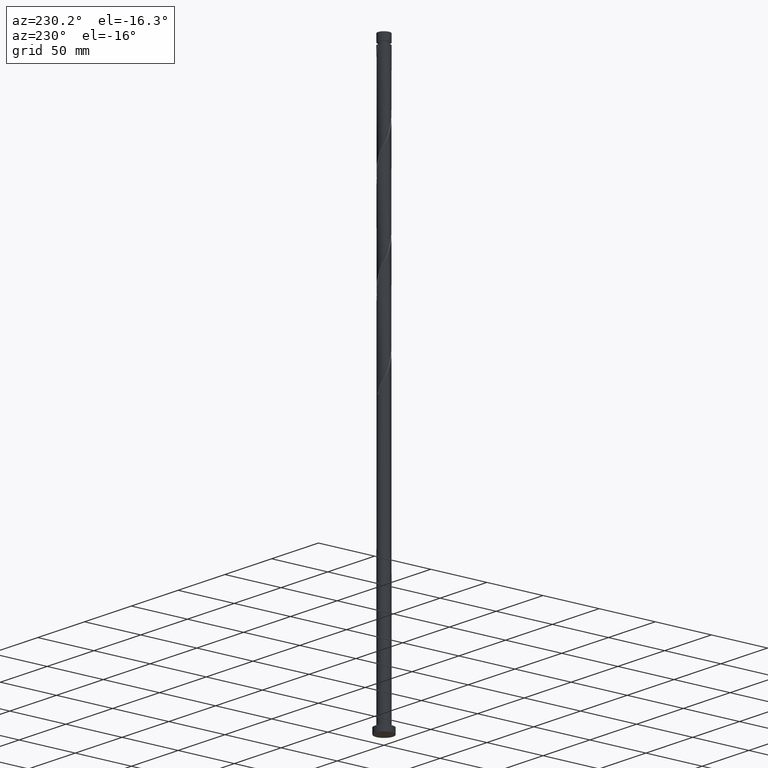
[diagram: clean part render]
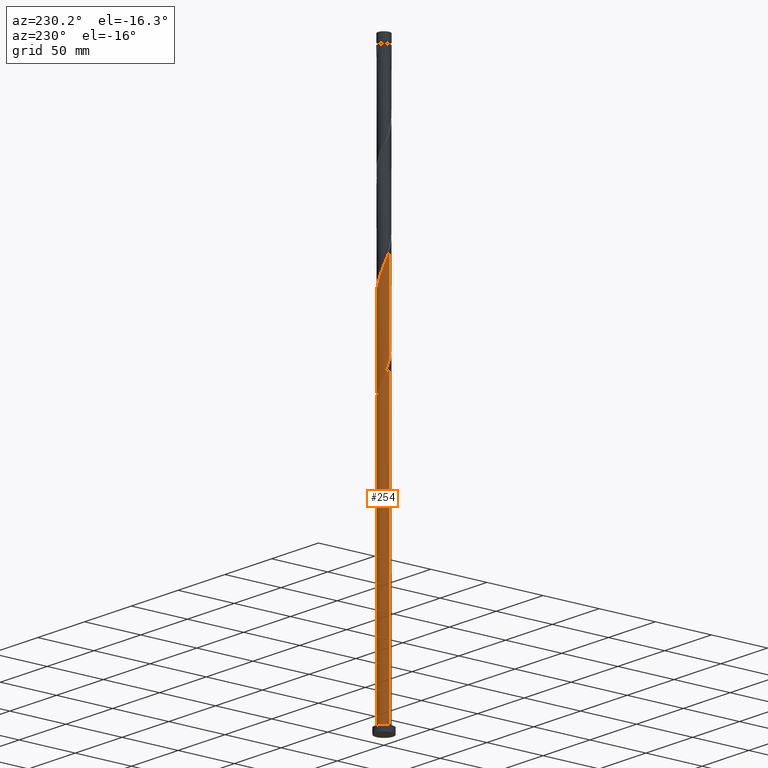
[diagram: same view with one face highlighted and labeled with its STEP entity id]
A machine part, auxiliary view. The second image highlights one B-rep face of the part: STEP entity #254.
In plain terms, the highlighted cylindrical surface (edge-blend (fillet) strip) has radius 5.25 mm, axis along (-0, -0, -1).
Its self-contained STEP definition (entity closure, byte-faithful):
#16 = DIRECTION ( 'NONE',  ( -1.000000000000000000, 0.000000000000000000, 0.000000000000000000 ) ) ;
#20 = CARTESIAN_POINT ( 'NONE',  ( -5.247897594453547754, 0.5379985386893459953, 263.5156674115050919 ) ) ;
#22 = CARTESIAN_POINT ( 'NONE',  ( -4.662363351767601749, 2.468246253030205395, 253.0990007448383778 ) ) ;
#58 = CIRCLE ( 'NONE', #94, 5.250000000000000000 ) ;
#79 = VERTEX_POINT ( 'NONE', #879 ) ;
#94 = AXIS2_PLACEMENT_3D ( 'NONE', #1974, #184, #16 ) ;
#112 = CARTESIAN_POINT ( 'NONE',  ( -2.934117214179495114, 4.353556726798863963, 246.5885840781716922 ) ) ;
#114 = CARTESIAN_POINT ( 'NONE',  ( -2.934117214179495114, 4.353556726798863963, 329.9219174115050350 ) ) ;
#148 = CARTESIAN_POINT ( 'NONE',  ( -4.642542048837808188, 2.505329302562051108, 258.3073340781717206 ) ) ;
#184 = DIRECTION ( 'NONE',  ( 0.000000000000000000, -0.000000000000000000, -1.000000000000000000 ) ) ;
#188 = CARTESIAN_POINT ( 'NONE',  ( -4.091246390986367665, 3.330401561034987967, 250.4948340781717491 ) ) ;
#227 = EDGE_CURVE ( 'NONE', #1961, #1593, #548, .T. ) ;
#254 = ADVANCED_FACE ( 'NONE', ( #615 ), #267, .T. ) ;
#261 = CARTESIAN_POINT ( 'NONE',  ( 5.247897594453554859, 0.5379985386893471055, 302.5781674115050350 ) ) ;
#267 = CYLINDRICAL_SURFACE ( 'NONE', #1571, 5.250000000000000000 ) ;
#272 = CARTESIAN_POINT ( 'NONE',  ( 0.000000000000000000, 0.000000000000000000, 500.0000000000000000 ) ) ;
#277 = CARTESIAN_POINT ( 'NONE',  ( 4.642542048837816182, 2.505329302562050220, 307.7865007448382926 ) ) ;
#279 = CARTESIAN_POINT ( 'NONE',  ( -0.4961529839846487988, 5.252019021860672154, 245.2865007448384063 ) ) ;
#297 = CARTESIAN_POINT ( 'NONE',  ( 2.468246253030207171, 4.662363351767599084, 315.5990007448382926 ) ) ;
#310 = CARTESIAN_POINT ( 'NONE',  ( -5.042102405546450505, 1.551475079234566179, 260.9115007448384063 ) ) ;
#341 = DIRECTION ( 'NONE',  ( 1.000000000000000000, 0.000000000000000000, 0.000000000000000000 ) ) ;
#344 = CARTESIAN_POINT ( 'NONE',  ( -5.249958308157109954, 0.02092277735234911867, 264.8177507448383494 ) ) ;
#350 = DIRECTION ( 'NONE',  ( -0.000000000000000000, -0.000000000000000000, -1.000000000000000000 ) ) ;
#357 = VERTEX_POINT ( 'NONE', #1413 ) ;
#378 = EDGE_CURVE ( 'NONE', #79, #1269, #1229, .T. ) ;
#382 = VERTEX_POINT ( 'NONE', #932 ) ;
#403 = ORIENTED_EDGE ( 'NONE', *, *, #995, .F. ) ;
#414 = CARTESIAN_POINT ( 'NONE',  ( 1.989741939380060387, 4.858335827695750453, 316.9010840781716638 ) ) ;
#421 = CARTESIAN_POINT ( 'NONE',  ( -3.727075758391653615, 3.697486482897450077, 332.5260840781717206 ) ) ;
#456 = DIRECTION ( 'NONE',  ( -1.000000000000000000, 0.000000000000000000, 0.000000000000000000 ) ) ;
#470 = EDGE_LOOP ( 'NONE', ( #403, #507, #775, #1313, #934, #1762, #1671, #682 ) ) ;
#507 = ORIENTED_EDGE ( 'NONE', *, *, #378, .T. ) ;
#548 = LINE ( 'NONE', #1184, #706 ) ;
#558 = CARTESIAN_POINT ( 'NONE',  ( 5.250000000000000000, 6.429395695523604153E-16, 5.000000000000000000 ) ) ;
#588 = CARTESIAN_POINT ( 'NONE',  ( -5.054308303623898269, 1.511237625729916711, 339.0365007448382926 ) ) ;
#598 = CARTESIAN_POINT ( 'NONE',  ( -3.362905125796937789, 4.064571404759911744, 247.8906674115050635 ) ) ;
#601 = CARTESIAN_POINT ( 'NONE',  ( 5.145000000000004903, 1.044736808961955976, 303.8802507448382926 ) ) ;
#604 = CARTESIAN_POINT ( 'NONE',  ( -4.842322227192129347, 2.028402190898309421, 259.6094174115050919 ) ) ;
#611 = CARTESIAN_POINT ( 'NONE',  ( 0.4961529839846509637, 5.252019021860680148, 320.8073340781715501 ) ) ;
#615 = FACE_OUTER_BOUND ( 'NONE', #470, .T. ) ;
#628 = DIRECTION ( 'NONE',  ( -0.000000000000000000, -0.000000000000000000, -1.000000000000000000 ) ) ;
#640 =( BOUNDED_CURVE ( )  B_SPLINE_CURVE ( 2, ( #1040, #890, #1891, #1553, #112, #598, #1073, #188, #1475, #22, #997, #1966, #1773, #1318, #1620 ),
 .UNSPECIFIED., .F., .T. ) 
 B_SPLINE_CURVE_WITH_KNOTS ( ( 3, 2, 2, 2, 2, 2, 2, 3 ),
 ( 0.000000000000000000, 0.007812500000000000000, 0.01562500000000000000, 0.02343750000000000000, 0.03125000000000000000, 0.03906250000000000000, 0.04687500000000000000, 0.05452869021808718492 ),
 .UNSPECIFIED. ) 
 CURVE ( )  GEOMETRIC_REPRESENTATION_ITEM ( )  RATIONAL_B_SPLINE_CURVE ( ( 0.9090909090909514711, 0.9047133878838575782, 0.9090909090909514711, 0.9047133878838575782, 0.9090909090909514711, 0.9047133878838575782, 0.9090909090909514711, 0.9047133878838575782, 0.9090909090909514711, 0.9047133878838575782, 0.9090909090909514711, 0.9047133878838575782, 0.9090909090909514711, 0.9048023726119494015, 0.9089165573359548889 ) ) 
 REPRESENTATION_ITEM ( '' )  );
#641 = CARTESIAN_POINT ( 'NONE',  ( -2.899323907032592462, 4.376804871376981154, 251.7969174115050635 ) ) ;
#682 = ORIENTED_EDGE ( 'NONE', *, *, #1808, .F. ) ;
#706 = VECTOR ( 'NONE', #1366, 1000.000000000000000 ) ;
#744 = CARTESIAN_POINT ( 'NONE',  ( 1.511237625729916711, 5.054308303623898269, 318.2031674115050350 ) ) ;
#750 = CARTESIAN_POINT ( 'NONE',  ( 3.330401561034987967, 4.091246390986367665, 312.9948340781715501 ) ) ;
#759 = CARTESIAN_POINT ( 'NONE',  ( -5.249999999999998224, 2.312341979469867591E-13, 264.8704477228346263 ) ) ;
#770 = CARTESIAN_POINT ( 'NONE',  ( -3.330401561034982638, 4.091246390986364112, 253.0990007448383778 ) ) ;
#775 = ORIENTED_EDGE ( 'NONE', *, *, #1630, .T. ) ;
#780 = CARTESIAN_POINT ( 'NONE',  ( 4.842322227192136452, 2.028402190898310309, 306.4844174115049782 ) ) ;
#803 =( BOUNDED_CURVE ( )  B_SPLINE_CURVE ( 2, ( #1868, #1234, #926, #261, #601, #1714, #780, #277, #1076, #1886, #1389, #750, #1409, #297, #414, #744, #1382, #611, #2036, #914, #901, #1546, #1562, #1707, #114, #938, #421, #1208, #1728, #908, #1555, #588, #2059, #1243, #1225 ),
 .UNSPECIFIED., .F., .T. ) 
 B_SPLINE_CURVE_WITH_KNOTS ( ( 3, 2, 2, 2, 2, 2, 2, 2, 2, 2, 2, 2, 2, 2, 2, 2, 2, 3 ),
 ( 0.1795286902180872057, 0.1796875000000000000, 0.1875000000000000000, 0.1953125000000000000, 0.2031250000000000000, 0.2109375000000000000, 0.2187500000000000000, 0.2265625000000000000, 0.2343750000000000000, 0.2421875000000000000, 0.2500000000000000000, 0.2578125000000000000, 0.2656250000000000000, 0.2734375000000000000, 0.2812500000000000000, 0.2890625000000000000, 0.2968750000000000000, 0.3045286902180874833 ),
 .UNSPECIFIED. ) 
 CURVE ( )  GEOMETRIC_REPRESENTATION_ITEM ( )  RATIONAL_B_SPLINE_CURVE ( ( 0.9089165573359548889, 0.9090019243628596479, 0.9090909090909514711, 0.9047133878838575782, 0.9090909090909514711, 0.9047133878838575782, 0.9090909090909514711, 0.9047133878838575782, 0.9090909090909514711, 0.9047133878838575782, 0.9090909090909514711, 0.9047133878838575782, 0.9090909090909514711, 0.9047133878838575782, 0.9090909090909514711, 0.9047133878838575782, 0.9090909090909514711, 0.9047133878838575782, 0.9090909090909514711, 0.9047133878838575782, 0.9090909090909514711, 0.9047133878838575782, 0.9090909090909514711, 0.9047133878838575782, 0.9090909090909514711, 0.9047133878838575782, 0.9090909090909514711, 0.9047133878838575782, 0.9090909090909514711, 0.9047133878838575782, 0.9090909090909514711, 0.9047133878838575782, 0.9090909090909514711, 0.9048023726119491794, 0.9089165573359552219 ) ) 
 REPRESENTATION_ITEM ( '' )  );
#872 = VERTEX_POINT ( 'NONE', #1398 ) ;
#879 = CARTESIAN_POINT ( 'NONE',  ( 5.250000000000007105, -6.256877115908171132E-15, 301.2233871001748184 ) ) ;
#890 = CARTESIAN_POINT ( 'NONE',  ( -1.551475079234567733, 5.042102405546457611, 242.6823340781717206 ) ) ;
#901 = CARTESIAN_POINT ( 'NONE',  ( -1.044736808961955754, 5.145000000000004903, 324.7135840781717206 ) ) ;
#908 = CARTESIAN_POINT ( 'NONE',  ( -4.662363351767601749, 2.468246253030205395, 336.4323340781716638 ) ) ;
#914 = CARTESIAN_POINT ( 'NONE',  ( -0.5379985386893467725, 5.247897594453554859, 323.4115007448382926 ) ) ;
#926 = CARTESIAN_POINT ( 'NONE',  ( 5.249958308157117060, 0.02092277735234565963, 301.2760840781716638 ) ) ;
#932 = CARTESIAN_POINT ( 'NONE',  ( -1.044736808961955532, 5.145000000000004903, 241.3802507448383778 ) ) ;
#934 = ORIENTED_EDGE ( 'NONE', *, *, #1870, .F. ) ;
#938 = CARTESIAN_POINT ( 'NONE',  ( -3.362905125796937789, 4.064571404759911744, 331.2240007448382926 ) ) ;
#948 = CARTESIAN_POINT ( 'NONE',  ( -5.250000000000000000, 0.000000000000000000, 5.000000000000000000 ) ) ;
#951 = CARTESIAN_POINT ( 'NONE',  ( -1.003695304857281201, 5.153163662742282547, 246.5885840781717491 ) ) ;
#995 = EDGE_CURVE ( 'NONE', #79, #357, #803, .T. ) ;
#997 = CARTESIAN_POINT ( 'NONE',  ( -4.858335827695750453, 1.989741939380060831, 254.4010840781717206 ) ) ;
#1040 = CARTESIAN_POINT ( 'NONE',  ( -1.044736808961955532, 5.145000000000004903, 241.3802507448383778 ) ) ;
#1055 = VECTOR ( 'NONE', #628, 1000.000000000000000 ) ;
#1073 = CARTESIAN_POINT ( 'NONE',  ( -3.727075758391653615, 3.697486482897450077, 249.1927507448383210 ) ) ;
#1076 = CARTESIAN_POINT ( 'NONE',  ( 4.353556726798862186, 2.934117214179496447, 309.0885840781717206 ) ) ;
#1101 = CARTESIAN_POINT ( 'NONE',  ( 0.000000000000000000, 0.000000000000000000, 5.000000000000000000 ) ) ;
#1106 = CARTESIAN_POINT ( 'NONE',  ( -2.468246253030200510, 4.662363351767596420, 250.4948340781717491 ) ) ;
#1116 = CARTESIAN_POINT ( 'NONE',  ( 0.5379985386893462174, 5.247897594453547754, 242.6823340781716638 ) ) ;
#1184 = CARTESIAN_POINT ( 'NONE',  ( -5.250000000000000000, 0.000000000000000000, 500.0000000000000000 ) ) ;
#1207 = EDGE_CURVE ( 'NONE', #382, #872, #58, .T. ) ;
#1208 = CARTESIAN_POINT ( 'NONE',  ( -4.091246390986367665, 3.330401561034987967, 333.8281674115050350 ) ) ;
#1225 = CARTESIAN_POINT ( 'NONE',  ( -5.250000000000007105, 4.380000364129938595E-15, 342.8900537668416177 ) ) ;
#1229 = LINE ( 'NONE', #2063, #1055 ) ;
#1234 = CARTESIAN_POINT ( 'NONE',  ( 5.250000000000006217, 0.01046143021486906424, 301.2497406546920615 ) ) ;
#1243 = CARTESIAN_POINT ( 'NONE',  ( -5.250000000000012434, 0.5065190283771339175, 341.6140736614255502 ) ) ;
#1258 = DIRECTION ( 'NONE',  ( -0.000000000000000000, -0.000000000000000000, -1.000000000000000000 ) ) ;
#1269 = VERTEX_POINT ( 'NONE', #558 ) ;
#1313 = ORIENTED_EDGE ( 'NONE', *, *, #227, .F. ) ;
#1318 = CARTESIAN_POINT ( 'NONE',  ( -5.250000000000006217, 0.5065190283771533464, 258.2807403280921790 ) ) ;
#1366 = DIRECTION ( 'NONE',  ( -0.000000000000000000, -0.000000000000000000, -1.000000000000000000 ) ) ;
#1371 = AXIS2_PLACEMENT_3D ( 'NONE', #1101, #1460, #341 ) ;
#1382 = CARTESIAN_POINT ( 'NONE',  ( 1.003695304857286530, 5.153163662742286988, 319.5052507448382926 ) ) ;
#1389 = CARTESIAN_POINT ( 'NONE',  ( 3.697486482897451410, 3.727075758391652283, 311.6927507448383494 ) ) ;
#1390 = CARTESIAN_POINT ( 'NONE',  ( -5.249999999999997335, 0.01046143021498588052, 264.8440941683176106 ) ) ;
#1398 = CARTESIAN_POINT ( 'NONE',  ( 1.044736808961957308, 5.144999999999998685, 241.3802507448383778 ) ) ;
#1402 = CARTESIAN_POINT ( 'NONE',  ( 1.044736808961957308, 5.144999999999998685, 241.3802507448384063 ) ) ;
#1409 = CARTESIAN_POINT ( 'NONE',  ( 2.899323907032597347, 4.376804871376984707, 314.2969174115049782 ) ) ;
#1412 = CARTESIAN_POINT ( 'NONE',  ( -1.989741939380056612, 4.858335827695745124, 249.1927507448384347 ) ) ;
#1413 = CARTESIAN_POINT ( 'NONE',  ( -5.250000000000007105, 4.380000364129938595E-15, 342.8900537668416177 ) ) ;
#1424 = CARTESIAN_POINT ( 'NONE',  ( -1.511237625729912715, 5.054308303623891163, 247.8906674115050350 ) ) ;
#1460 = DIRECTION ( 'NONE',  ( 0.000000000000000000, 0.000000000000000000, 1.000000000000000000 ) ) ;
#1475 = CARTESIAN_POINT ( 'NONE',  ( -4.376804871376985595, 2.899323907032596903, 251.7969174115050066 ) ) ;
#1504 = VERTEX_POINT ( 'NONE', #1833 ) ;
#1546 = CARTESIAN_POINT ( 'NONE',  ( -1.551475079234567733, 5.042102405546457611, 326.0156674115049782 ) ) ;
#1553 = CARTESIAN_POINT ( 'NONE',  ( -2.505329302562051996, 4.642542048837816182, 245.2865007448383778 ) ) ;
#1555 = CARTESIAN_POINT ( 'NONE',  ( -4.858335827695750453, 1.989741939380060831, 337.7344174115050919 ) ) ;
#1562 = CARTESIAN_POINT ( 'NONE',  ( -2.028402190898309865, 4.842322227192138229, 327.3177507448383494 ) ) ;
#1571 = AXIS2_PLACEMENT_3D ( 'NONE', #272, #1258, #456 ) ;
#1593 = VERTEX_POINT ( 'NONE', #948 ) ;
#1599 = CARTESIAN_POINT ( 'NONE',  ( 0.02092277735234869540, 5.249958308157109954, 243.9844174115050635 ) ) ;
#1620 = CARTESIAN_POINT ( 'NONE',  ( -5.250000000000007105, 4.380000364129938595E-15, 259.5567204335081897 ) ) ;
#1626 = LINE ( 'NONE', #1959, #1846 ) ;
#1630 = EDGE_CURVE ( 'NONE', #1269, #1593, #1843, .T. ) ;
#1671 = ORIENTED_EDGE ( 'NONE', *, *, #2093, .F. ) ;
#1707 = CARTESIAN_POINT ( 'NONE',  ( -2.505329302562051996, 4.642542048837816182, 328.6198340781716638 ) ) ;
#1714 = CARTESIAN_POINT ( 'NONE',  ( 5.042102405546458499, 1.551475079234564847, 305.1823340781717206 ) ) ;
#1717 = CARTESIAN_POINT ( 'NONE',  ( -3.697486482897444304, 3.727075758391649174, 254.4010840781717775 ) ) ;
#1728 = CARTESIAN_POINT ( 'NONE',  ( -4.376804871376985595, 2.899323907032596903, 335.1302507448384063 ) ) ;
#1762 = ORIENTED_EDGE ( 'NONE', *, *, #1207, .T. ) ;
#1773 = CARTESIAN_POINT ( 'NONE',  ( -5.153163662742290541, 1.003695304857283421, 257.0052507448382926 ) ) ;
#1808 = EDGE_CURVE ( 'NONE', #357, #1504, #1626, .T. ) ;
#1819 = CARTESIAN_POINT ( 'NONE',  ( -5.250000000000007105, 4.380000364129938595E-15, 259.5567204335081897 ) ) ;
#1833 = CARTESIAN_POINT ( 'NONE',  ( -5.249999999999998224, 2.312341979469867591E-13, 264.8704477228346263 ) ) ;
#1843 = CIRCLE ( 'NONE', #1371, 5.250000000000000000 ) ;
#1846 = VECTOR ( 'NONE', #350, 1000.000000000000000 ) ;
#1868 = CARTESIAN_POINT ( 'NONE',  ( 5.250000000000007105, -6.256877115908171132E-15, 301.2233871001748184 ) ) ;
#1870 = EDGE_CURVE ( 'NONE', #382, #1961, #640, .T. ) ;
#1886 = CARTESIAN_POINT ( 'NONE',  ( 4.064571404759911744, 3.362905125796937789, 310.3906674115050919 ) ) ;
#1891 = CARTESIAN_POINT ( 'NONE',  ( -2.028402190898309865, 4.842322227192138229, 243.9844174115050350 ) ) ;
#1924 = CARTESIAN_POINT ( 'NONE',  ( -4.064571404759904638, 3.362905125796934680, 255.7031674115050066 ) ) ;
#1959 = CARTESIAN_POINT ( 'NONE',  ( -5.250000000000000000, 0.000000000000000000, 500.0000000000000000 ) ) ;
#1961 = VERTEX_POINT ( 'NONE', #1819 ) ;
#1966 = CARTESIAN_POINT ( 'NONE',  ( -5.054308303623898269, 1.511237625729916711, 255.7031674115050635 ) ) ;
#1974 = CARTESIAN_POINT ( 'NONE',  ( 0.000000000000000000, 0.000000000000000000, 241.3802507448383778 ) ) ;
#2025 = CARTESIAN_POINT ( 'NONE',  ( -5.145000000000000462, 1.044736808961956642, 262.2135840781717206 ) ) ;
#2036 = CARTESIAN_POINT ( 'NONE',  ( -0.02092277735234544106, 5.249958308157117060, 322.1094174115049782 ) ) ;
#2059 = CARTESIAN_POINT ( 'NONE',  ( -5.153163662742290541, 1.003695304857283421, 340.3385840781717775 ) ) ;
#2063 = CARTESIAN_POINT ( 'NONE',  ( 5.250000000000000000, 6.429395695523604153E-16, 500.0000000000000000 ) ) ;
#2084 = CARTESIAN_POINT ( 'NONE',  ( -4.353556726798856857, 2.934117214179492894, 257.0052507448383494 ) ) ;
#2092 =( BOUNDED_CURVE ( )  B_SPLINE_CURVE ( 2, ( #759, #1390, #344, #20, #2025, #310, #604, #148, #2084, #1924, #1717, #770, #641, #1106, #1412, #1424, #951, #279, #1599, #1116, #1402 ),
 .UNSPECIFIED., .F., .T. ) 
 B_SPLINE_CURVE_WITH_KNOTS ( ( 3, 2, 2, 2, 2, 2, 2, 2, 2, 2, 3 ),
 ( 0.9295286902180889266, 0.9296875000000000000, 0.9375000000000000000, 0.9453125000000000000, 0.9531250000000000000, 0.9609375000000000000, 0.9687500000000000000, 0.9765625000000000000, 0.9843750000000000000, 0.9921875000000000000, 1.000000000000000000 ),
 .UNSPECIFIED. ) 
 CURVE ( )  GEOMETRIC_REPRESENTATION_ITEM ( )  RATIONAL_B_SPLINE_CURVE ( ( 0.9089165573359510031, 0.9090019243628548740, 0.9090909090909458090, 0.9047133878838519161, 0.9090909090909458090, 0.9047133878838519161, 0.9090909090909458090, 0.9047133878838519161, 0.9090909090909458090, 0.9047133878838519161, 0.9090909090909458090, 0.9047133878838519161, 0.9090909090909458090, 0.9047133878838519161, 0.9090909090909458090, 0.9047133878838519161, 0.9090909090909458090, 0.9047133878838519161, 0.9090909090909458090, 0.9047133878838519161, 0.9090909090909458090 ) ) 
 REPRESENTATION_ITEM ( '' )  );
#2093 = EDGE_CURVE ( 'NONE', #1504, #872, #2092, .T. ) ;